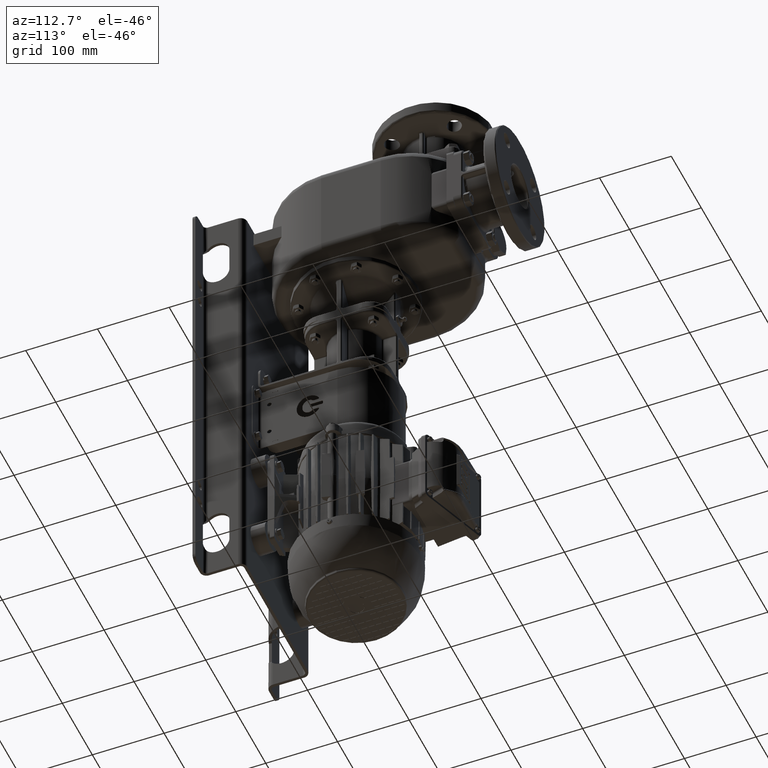
[diagram: clean part render]
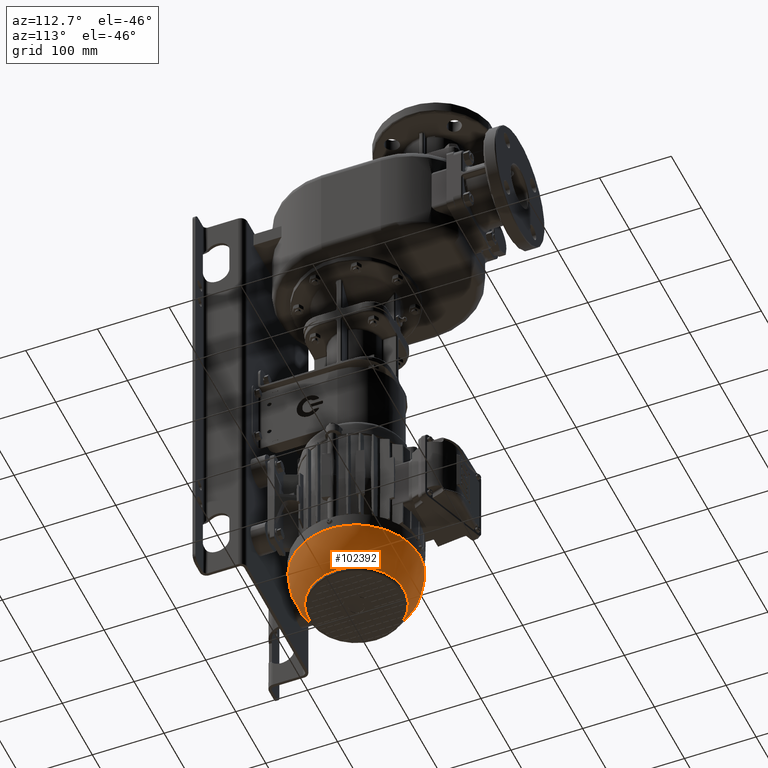
[diagram: same view with one face highlighted and labeled with its STEP entity id]
A machine part, auxiliary view. The second image highlights one B-rep face of the part: STEP entity #102392.
In plain terms, the highlighted spherical surface has radius 88.2484 mm.
Its self-contained STEP definition (entity closure, byte-faithful):
#18069=CARTESIAN_POINT('',(1.460972643146E1,2.3E1,-5.868100738711E2));
#18081=CARTESIAN_POINT('',(-1.460972643146E1,2.3E1,-5.868100738711E2));
#18510=CARTESIAN_POINT('',(-3.892536624341E-14,1.1E2,-5.868100738710E2));
#18511=DIRECTION('',(0.E0,0.E0,1.E0));
#18512=DIRECTION('',(1.656090548758E-1,-9.861914828993E-1,0.E0));
#18513=AXIS2_PLACEMENT_3D('',#18510,#18511,#18512);
#18515=CARTESIAN_POINT('',(-1.421085471520E-14,2.3E1,-5.845E2));
#18516=DIRECTION('',(0.E0,-1.E0,0.E0));
#18517=DIRECTION('',(-9.877288322428E-1,0.E0,-1.561785963450E-1));
#18518=AXIS2_PLACEMENT_3D('',#18515,#18516,#18517);
#18520=CARTESIAN_POINT('',(-4.729358584881E-14,1.1E2,-6.421461572087E2));
#18521=DIRECTION('',(0.E0,0.E0,-1.E0));
#18522=DIRECTION('',(1.E0,0.E0,0.E0));
#18523=AXIS2_PLACEMENT_3D('',#18520,#18521,#18522);
#18525=CARTESIAN_POINT('',(-4.729358584881E-14,1.1E2,-6.421461572087E2));
#18526=DIRECTION('',(0.E0,0.E0,-1.E0));
#18527=DIRECTION('',(-1.E0,0.E0,0.E0));
#18528=AXIS2_PLACEMENT_3D('',#18525,#18526,#18527);
#82232=VERTEX_POINT('',#18069);
#82297=VERTEX_POINT('',#18081);
#83932=CARTESIAN_POINT('',(-6.681841891845E1,1.1E2,-6.421461572087E2));
#83934=VERTEX_POINT('',#83932);
#83992=CARTESIAN_POINT('',(6.681841891845E1,1.1E2,-6.421461572087E2));
#83993=VERTEX_POINT('',#83992);
#102377=CARTESIAN_POINT('',(-3.857602447053E-14,1.1E2,-5.845E2));
#102378=DIRECTION('',(1.E0,0.E0,0.E0));
#102379=DIRECTION('',(0.E0,1.E0,0.E0));
#102380=AXIS2_PLACEMENT_3D('',#102377,#102378,#102379);
#102381=SPHERICAL_SURFACE('',#102380,8.824840252204E1);
#102382=ORIENTED_EDGE('',*,*,#102323,.T.);
#102383=ORIENTED_EDGE('',*,*,#102308,.T.);
#102384=EDGE_LOOP('',(#102382,#102383));
#102385=FACE_OUTER_BOUND('',#102384,.F.);
#102387=ORIENTED_EDGE('',*,*,#102386,.T.);
#102389=ORIENTED_EDGE('',*,*,#102388,.T.);
#102390=EDGE_LOOP('',(#102387,#102389));
#102391=FACE_BOUND('',#102390,.F.);
#102392=ADVANCED_FACE('',(#102385,#102391),#102381,.T.);
#18514=CIRCLE('',#18513,8.821816199855E1);
#18519=CIRCLE('',#18518,1.479123212217E1);
#18524=CIRCLE('',#18523,6.681841891845E1);
#18529=CIRCLE('',#18528,6.681841891845E1);
#102308=EDGE_CURVE('',#82297,#82232,#18519,.T.);
#102323=EDGE_CURVE('',#82232,#82297,#18514,.T.);
#102386=EDGE_CURVE('',#83993,#83934,#18524,.T.);
#102388=EDGE_CURVE('',#83934,#83993,#18529,.T.);